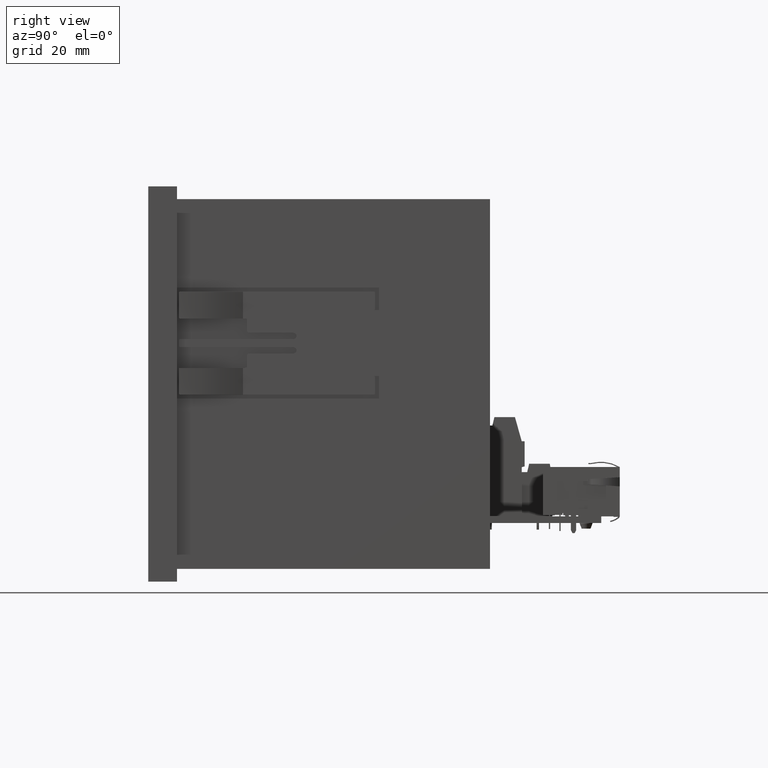
[diagram: clean part render]
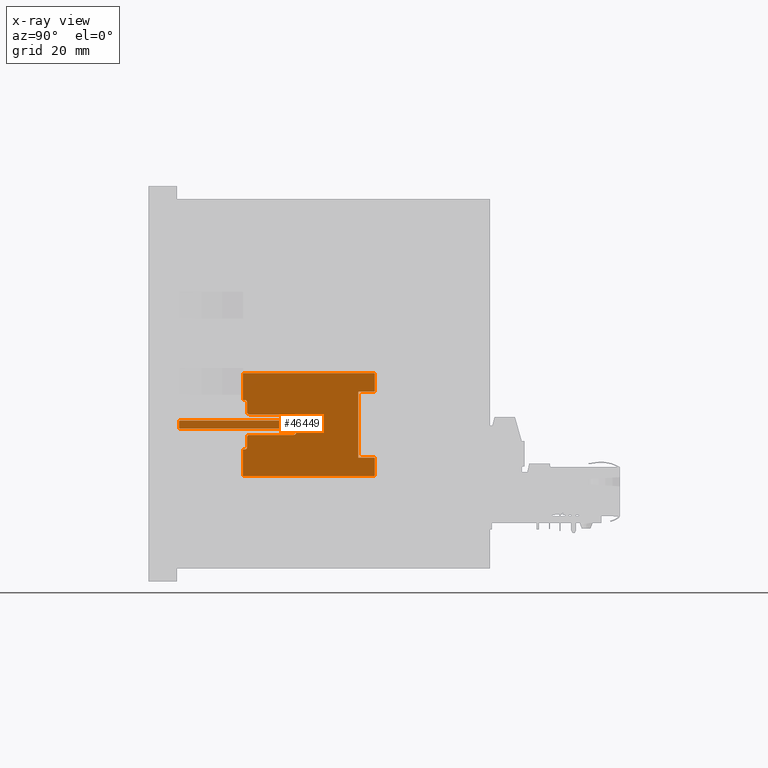
[diagram: x-ray — body ghosted, one internal face saturated and labeled with its STEP entity id]
A machine part, right view, then the same camera in x-ray: the body is ghosted and one INTERNAL B-rep face — a face not visible from any outside direction — is saturated and labeled: STEP entity #46449.
In plain terms, the highlighted planar face has unit normal (-1, 0, 0).
Its self-contained STEP definition (entity closure, byte-faithful):
#45413=CARTESIAN_POINT('',(-88.274848406077425,-78.572143393853068,-0.500000000000000));
#45414=VERTEX_POINT('',#45413);
#45421=CARTESIAN_POINT('',(-88.474848406077427,-78.372143393853065,-0.500000000000000));
#45422=VERTEX_POINT('',#45421);
#45423=CARTESIAN_POINT('',(-88.474848406077427,-78.572143393853068,-0.500000000000000));
#45424=DIRECTION('',(0.0,0.0,1.0));
#45425=DIRECTION('',(0.707106781186497,0.707106781186598,0.0));
#45426=AXIS2_PLACEMENT_3D('',#45423,#45424,#45425);
#45427=CIRCLE('',#45426,0.200000000000000);
#45428=EDGE_CURVE('',#45414,#45422,#45427,.T.);
#45695=CARTESIAN_POINT('',(-90.074848406077422,-78.372143393853065,-0.500000000000000));
#45696=VERTEX_POINT('',#45695);
#45697=CARTESIAN_POINT('',(-90.074848406077422,-78.372143393853065,-0.500000000000000));
#45698=DIRECTION('',(1.0,0.0,0.0));
#45699=VECTOR('',#45698,1.599999999999994);
#45700=LINE('',#45697,#45699);
#45701=EDGE_CURVE('',#45696,#45422,#45700,.T.);
#45720=CARTESIAN_POINT('',(-90.274848406077425,-78.572143393853054,-0.500000000000000));
#45721=VERTEX_POINT('',#45720);
#45722=CARTESIAN_POINT('',(-90.074848406077422,-78.572143393853054,-0.500000000000000));
#45723=DIRECTION('',(0.0,0.0,1.000000000000000));
#45724=DIRECTION('',(-0.707106781186547,0.707106781186547,0.0));
#45725=AXIS2_PLACEMENT_3D('',#45722,#45723,#45724);
#45726=CIRCLE('',#45725,0.200000000000000);
#45727=EDGE_CURVE('',#45696,#45721,#45726,.T.);
#45815=CARTESIAN_POINT('',(-95.274848406077439,-94.372143393853065,-0.500000000000000));
#45816=VERTEX_POINT('',#45815);
#45823=CARTESIAN_POINT('',(-95.274848406077439,-93.872143393853079,-0.500000000000000));
#45824=VERTEX_POINT('',#45823);
#45825=CARTESIAN_POINT('',(-95.274848406077439,-93.872143393853079,-0.500000000000000));
#45826=DIRECTION('',(0.0,-1.0,0.0));
#45827=VECTOR('',#45826,0.499999999999986);
#45828=LINE('',#45825,#45827);
#45829=EDGE_CURVE('',#45824,#45816,#45828,.T.);
#45951=CARTESIAN_POINT('',(-101.774848406077420,-93.872143393853079,-0.500000000000000));
#45952=VERTEX_POINT('',#45951);
#45960=CARTESIAN_POINT('',(-101.774848406077420,-125.672143393853060,-0.500000000000000));
#45961=VERTEX_POINT('',#45960);
#45962=CARTESIAN_POINT('',(-101.774848406077420,-125.672143393853060,-0.500000000000000));
#45963=DIRECTION('',(0.0,1.0,0.0));
#45964=VECTOR('',#45963,31.799999999999983);
#45965=LINE('',#45962,#45964);
#45966=EDGE_CURVE('',#45961,#45952,#45965,.T.);
#46063=CARTESIAN_POINT('',(-76.774848406077439,-125.672143393853080,-0.500000000000000));
#46064=VERTEX_POINT('',#46063);
#46071=CARTESIAN_POINT('',(-76.774848406077439,-93.872143393853079,-0.500000000000000));
#46072=VERTEX_POINT('',#46071);
#46073=CARTESIAN_POINT('',(-76.774848406077439,-93.872143393853079,-0.500000000000000));
#46074=DIRECTION('',(0.0,-1.0,0.0));
#46075=VECTOR('',#46074,31.799999999999997);
#46076=LINE('',#46073,#46075);
#46077=EDGE_CURVE('',#46072,#46064,#46076,.T.);
#46199=CARTESIAN_POINT('',(-83.274848406077439,-93.872143393853079,-0.500000000000000));
#46200=VERTEX_POINT('',#46199);
#46208=CARTESIAN_POINT('',(-83.274848406077439,-94.372143393853065,-0.500000000000000));
#46209=VERTEX_POINT('',#46208);
#46210=CARTESIAN_POINT('',(-83.274848406077439,-94.372143393853065,-0.500000000000000));
#46211=DIRECTION('',(0.0,1.0,0.0));
#46212=VECTOR('',#46211,0.499999999999986);
#46213=LINE('',#46210,#46212);
#46214=EDGE_CURVE('',#46209,#46200,#46213,.T.);
#46240=CARTESIAN_POINT('',(-76.974848406077427,-125.872143393853070,-0.500000000000000));
#46241=VERTEX_POINT('',#46240);
#46248=CARTESIAN_POINT('',(-76.974848406077427,-125.672143393853080,-0.500000000000000));
#46249=DIRECTION('',(0.0,0.0,1.000000000000000));
#46250=DIRECTION('',(0.707106781186547,-0.707106781186547,0.0));
#46251=AXIS2_PLACEMENT_3D('',#46248,#46249,#46250);
#46252=CIRCLE('',#46251,0.200000000000000);
#46253=EDGE_CURVE('',#46241,#46064,#46252,.T.);
#46259=CARTESIAN_POINT('',(-89.274848406077439,-104.302836463160010,-0.500000000000000));
#46260=DIRECTION('',(0.0,0.0,1.0));
#46261=DIRECTION('',(1.0,0.0,0.0));
#46262=AXIS2_PLACEMENT_3D('',#46259,#46260,#46261);
#46263=PLANE('',#46262);
#46264=ORIENTED_EDGE('',*,*,#45428,.F.);
#46265=CARTESIAN_POINT('',(-88.274848406077425,-106.122143393853070,-0.500000000000000));
#46266=VERTEX_POINT('',#46265);
#46267=CARTESIAN_POINT('',(-88.274848406077425,-78.572143393853068,-0.500000000000000));
#46268=DIRECTION('',(0.0,-1.0,0.0));
#46269=VECTOR('',#46268,27.549999999999997);
#46270=LINE('',#46267,#46269);
#46271=EDGE_CURVE('',#45414,#46266,#46270,.T.);
#46272=ORIENTED_EDGE('',*,*,#46271,.T.);
#46273=CARTESIAN_POINT('',(-86.774848406077425,-106.122143393853070,-0.500000000000000));
#46274=VERTEX_POINT('',#46273);
#46275=CARTESIAN_POINT('',(-87.524848406077425,-106.122143393853070,-0.500000000000000));
#46276=DIRECTION('',(0.0,0.0,-1.000000000000000));
#46277=DIRECTION('',(0.707106781186547,-0.707106781186547,0.0));
#46278=AXIS2_PLACEMENT_3D('',#46275,#46276,#46277);
#46279=CIRCLE('',#46278,0.750000000000000);
#46280=EDGE_CURVE('',#46274,#46266,#46279,.T.);
#46281=ORIENTED_EDGE('',*,*,#46280,.F.);
#46282=CARTESIAN_POINT('',(-86.774848406077425,-95.372143393853065,-0.500000000000000));
#46283=VERTEX_POINT('',#46282);
#46284=CARTESIAN_POINT('',(-86.774848406077425,-106.122143393853070,-0.500000000000000));
#46285=DIRECTION('',(0.0,1.0,0.0));
#46286=VECTOR('',#46285,10.750000000000000);
#46287=LINE('',#46284,#46286);
#46288=EDGE_CURVE('',#46274,#46283,#46287,.T.);
#46289=ORIENTED_EDGE('',*,*,#46288,.T.);
#46290=CARTESIAN_POINT('',(-86.274848406077425,-94.872143393853065,-0.500000000000000));
#46291=VERTEX_POINT('',#46290);
#46292=CARTESIAN_POINT('',(-86.274848406077425,-95.372143393853065,-0.500000000000000));
#46293=DIRECTION('',(0.0,0.0,1.000000000000000));
#46294=DIRECTION('',(-0.707106781186548,0.707106781186548,0.0));
#46295=AXIS2_PLACEMENT_3D('',#46292,#46293,#46294);
#46296=CIRCLE('',#46295,0.500000000000000);
#46297=EDGE_CURVE('',#46291,#46283,#46296,.T.);
#46298=ORIENTED_EDGE('',*,*,#46297,.F.);
#46299=CARTESIAN_POINT('',(-83.774848406077425,-94.872143393853065,-0.500000000000000));
#46300=VERTEX_POINT('',#46299);
#46301=CARTESIAN_POINT('',(-86.274848406077425,-94.872143393853065,-0.500000000000000));
#46302=DIRECTION('',(1.0,0.0,0.0));
#46303=VECTOR('',#46302,2.500000000000000);
#46304=LINE('',#46301,#46303);
#46305=EDGE_CURVE('',#46291,#46300,#46304,.T.);
#46306=ORIENTED_EDGE('',*,*,#46305,.T.);
#46307=CARTESIAN_POINT('',(-83.774848406077425,-94.372143393853065,-0.500000000000000));
#46308=DIRECTION('',(0.0,0.0,-1.000000000000000));
#46309=DIRECTION('',(0.707106781186548,-0.707106781186548,0.0));
#46310=AXIS2_PLACEMENT_3D('',#46307,#46308,#46309);
#46311=CIRCLE('',#46310,0.500000000000000);
#46312=EDGE_CURVE('',#46209,#46300,#46311,.T.);
#46313=ORIENTED_EDGE('',*,*,#46312,.F.);
#46314=ORIENTED_EDGE('',*,*,#46214,.T.);
#46315=CARTESIAN_POINT('',(-76.774848406077439,-93.872143393853079,-0.500000000000000));
#46316=DIRECTION('',(-1.0,0.0,0.0));
#46317=VECTOR('',#46316,6.500000000000000);
#46318=LINE('',#46315,#46317);
#46319=EDGE_CURVE('',#46072,#46200,#46318,.T.);
#46320=ORIENTED_EDGE('',*,*,#46319,.F.);
#46321=ORIENTED_EDGE('',*,*,#46077,.T.);
#46322=ORIENTED_EDGE('',*,*,#46253,.F.);
#46323=CARTESIAN_POINT('',(-81.074848406077422,-125.872143393853070,-0.500000000000000));
#46324=VERTEX_POINT('',#46323);
#46325=CARTESIAN_POINT('',(-76.974848406077427,-125.872143393853070,-0.500000000000000));
#46326=DIRECTION('',(-1.0,0.0,0.0));
#46327=VECTOR('',#46326,4.099999999999994);
#46328=LINE('',#46325,#46327);
#46329=EDGE_CURVE('',#46241,#46324,#46328,.T.);
#46330=ORIENTED_EDGE('',*,*,#46329,.T.);
#46331=CARTESIAN_POINT('',(-81.274848406077425,-125.672143393853060,-0.500000000000000));
#46332=VERTEX_POINT('',#46331);
#46333=CARTESIAN_POINT('',(-81.074848406077422,-125.672143393853060,-0.500000000000000));
#46334=DIRECTION('',(0.0,0.0,1.0));
#46335=DIRECTION('',(-0.707106781186497,-0.707106781186598,0.0));
#46336=AXIS2_PLACEMENT_3D('',#46333,#46334,#46335);
#46337=CIRCLE('',#46336,0.200000000000000);
#46338=EDGE_CURVE('',#46332,#46324,#46337,.T.);
#46339=ORIENTED_EDGE('',*,*,#46338,.F.);
#46340=CARTESIAN_POINT('',(-81.274848406077425,-121.872143393853070,-0.500000000000000));
#46341=VERTEX_POINT('',#46340);
#46342=CARTESIAN_POINT('',(-81.274848406077425,-125.672143393853060,-0.500000000000000));
#46343=DIRECTION('',(0.0,1.0,0.0));
#46344=VECTOR('',#46343,3.799999999999997);
#46345=LINE('',#46342,#46344);
#46346=EDGE_CURVE('',#46332,#46341,#46345,.T.);
#46347=ORIENTED_EDGE('',*,*,#46346,.T.);
#46348=CARTESIAN_POINT('',(-97.274848406077425,-121.872143393853070,-0.500000000000000));
#46349=VERTEX_POINT('',#46348);
#46350=CARTESIAN_POINT('',(-81.274848406077425,-121.872143393853070,-0.500000000000000));
#46351=DIRECTION('',(-1.0,0.0,0.0));
#46352=VECTOR('',#46351,16.0);
#46353=LINE('',#46350,#46352);
#46354=EDGE_CURVE('',#46341,#46349,#46353,.T.);
#46355=ORIENTED_EDGE('',*,*,#46354,.T.);
#46356=CARTESIAN_POINT('',(-97.274848406077425,-125.672143393853080,-0.500000000000000));
#46357=VERTEX_POINT('',#46356);
#46358=CARTESIAN_POINT('',(-97.274848406077425,-121.872143393853070,-0.500000000000000));
#46359=DIRECTION('',(0.0,-1.0,0.0));
#46360=VECTOR('',#46359,3.800000000000011);
#46361=LINE('',#46358,#46360);
#46362=EDGE_CURVE('',#46349,#46357,#46361,.T.);
#46363=ORIENTED_EDGE('',*,*,#46362,.T.);
#46364=CARTESIAN_POINT('',(-97.474848406077427,-125.872143393853070,-0.500000000000000));
#46365=VERTEX_POINT('',#46364);
#46366=CARTESIAN_POINT('',(-97.474848406077427,-125.672143393853080,-0.500000000000000));
#46367=DIRECTION('',(0.0,0.0,1.000000000000000));
#46368=DIRECTION('',(0.707106781186547,-0.707106781186547,0.0));
#46369=AXIS2_PLACEMENT_3D('',#46366,#46367,#46368);
#46370=CIRCLE('',#46369,0.200000000000000);
#46371=EDGE_CURVE('',#46365,#46357,#46370,.T.);
#46372=ORIENTED_EDGE('',*,*,#46371,.F.);
#46373=CARTESIAN_POINT('',(-101.574848406077420,-125.872143393853070,-0.500000000000000));
#46374=VERTEX_POINT('',#46373);
#46375=CARTESIAN_POINT('',(-97.474848406077427,-125.872143393853070,-0.500000000000000));
#46376=DIRECTION('',(-1.0,0.0,0.0));
#46377=VECTOR('',#46376,4.099999999999994);
#46378=LINE('',#46375,#46377);
#46379=EDGE_CURVE('',#46365,#46374,#46378,.T.);
#46380=ORIENTED_EDGE('',*,*,#46379,.T.);
#46381=CARTESIAN_POINT('',(-101.574848406077420,-125.672143393853060,-0.500000000000000));
#46382=DIRECTION('',(0.0,0.0,1.0));
#46383=DIRECTION('',(-0.707106781186497,-0.707106781186598,0.0));
#46384=AXIS2_PLACEMENT_3D('',#46381,#46382,#46383);
#46385=CIRCLE('',#46384,0.200000000000000);
#46386=EDGE_CURVE('',#45961,#46374,#46385,.T.);
#46387=ORIENTED_EDGE('',*,*,#46386,.F.);
#46388=ORIENTED_EDGE('',*,*,#45966,.T.);
#46389=CARTESIAN_POINT('',(-95.274848406077439,-93.872143393853079,-0.500000000000000));
#46390=DIRECTION('',(-1.0,0.0,0.0));
#46391=VECTOR('',#46390,6.499999999999986);
#46392=LINE('',#46389,#46391);
#46393=EDGE_CURVE('',#45824,#45952,#46392,.T.);
#46394=ORIENTED_EDGE('',*,*,#46393,.F.);
#46395=ORIENTED_EDGE('',*,*,#45829,.T.);
#46396=CARTESIAN_POINT('',(-94.774848406077425,-94.872143393853065,-0.500000000000000));
#46397=VERTEX_POINT('',#46396);
#46398=CARTESIAN_POINT('',(-94.774848406077425,-94.372143393853065,-0.500000000000000));
#46399=DIRECTION('',(0.0,0.0,-1.000000000000000));
#46400=DIRECTION('',(-0.707106781186548,-0.707106781186548,0.0));
#46401=AXIS2_PLACEMENT_3D('',#46398,#46399,#46400);
#46402=CIRCLE('',#46401,0.500000000000000);
#46403=EDGE_CURVE('',#46397,#45816,#46402,.T.);
#46404=ORIENTED_EDGE('',*,*,#46403,.F.);
#46405=CARTESIAN_POINT('',(-92.274848406077425,-94.872143393853065,-0.500000000000000));
#46406=VERTEX_POINT('',#46405);
#46407=CARTESIAN_POINT('',(-94.774848406077425,-94.872143393853065,-0.500000000000000));
#46408=DIRECTION('',(1.0,0.0,0.0));
#46409=VECTOR('',#46408,2.500000000000000);
#46410=LINE('',#46407,#46409);
#46411=EDGE_CURVE('',#46397,#46406,#46410,.T.);
#46412=ORIENTED_EDGE('',*,*,#46411,.T.);
#46413=CARTESIAN_POINT('',(-91.774848406077425,-95.372143393853065,-0.500000000000000));
#46414=VERTEX_POINT('',#46413);
#46415=CARTESIAN_POINT('',(-92.274848406077425,-95.372143393853065,-0.500000000000000));
#46416=DIRECTION('',(0.0,0.0,1.000000000000000));
#46417=DIRECTION('',(0.707106781186548,0.707106781186548,0.0));
#46418=AXIS2_PLACEMENT_3D('',#46415,#46416,#46417);
#46419=CIRCLE('',#46418,0.500000000000000);
#46420=EDGE_CURVE('',#46414,#46406,#46419,.T.);
#46421=ORIENTED_EDGE('',*,*,#46420,.F.);
#46422=CARTESIAN_POINT('',(-91.774848406077425,-106.122143393853070,-0.500000000000000));
#46423=VERTEX_POINT('',#46422);
#46424=CARTESIAN_POINT('',(-91.774848406077425,-95.372143393853065,-0.500000000000000));
#46425=DIRECTION('',(0.0,-1.0,0.0));
#46426=VECTOR('',#46425,10.750000000000000);
#46427=LINE('',#46424,#46426);
#46428=EDGE_CURVE('',#46414,#46423,#46427,.T.);
#46429=ORIENTED_EDGE('',*,*,#46428,.T.);
#46430=CARTESIAN_POINT('',(-90.274848406077425,-106.122143393853070,-0.500000000000000));
#46431=VERTEX_POINT('',#46430);
#46432=CARTESIAN_POINT('',(-91.024848406077425,-106.122143393853070,-0.500000000000000));
#46433=DIRECTION('',(0.0,0.0,-1.000000000000000));
#46434=DIRECTION('',(0.707106781186547,-0.707106781186547,0.0));
#46435=AXIS2_PLACEMENT_3D('',#46432,#46433,#46434);
#46436=CIRCLE('',#46435,0.750000000000000);
#46437=EDGE_CURVE('',#46431,#46423,#46436,.T.);
#46438=ORIENTED_EDGE('',*,*,#46437,.F.);
#46439=CARTESIAN_POINT('',(-90.274848406077425,-106.122143393853070,-0.500000000000000));
#46440=DIRECTION('',(0.0,1.0,0.0));
#46441=VECTOR('',#46440,27.550000000000011);
#46442=LINE('',#46439,#46441);
#46443=EDGE_CURVE('',#46431,#45721,#46442,.T.);
#46444=ORIENTED_EDGE('',*,*,#46443,.T.);
#46445=ORIENTED_EDGE('',*,*,#45727,.F.);
#46446=ORIENTED_EDGE('',*,*,#45701,.T.);
#46447=EDGE_LOOP('',(#46264,#46272,#46281,#46289,#46298,#46306,#46313,#46314,#46320,#46321,#46322,#46330,#46339,#46347,#46355,#46363,#46372,#46380,#46387,#46388,#46394,#46395,#46404,#46412,#46421,#46429,#46438,#46444,#46445,#46446));
#46448=FACE_OUTER_BOUND('',#46447,.T.);
#46449=ADVANCED_FACE('',(#46448),#46263,.F.);